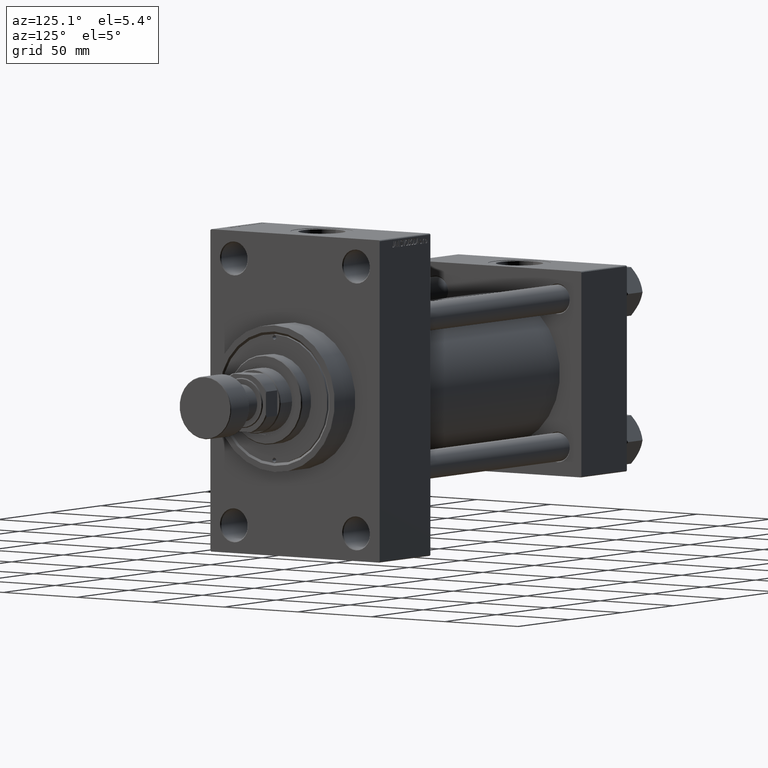
[diagram: clean part render]
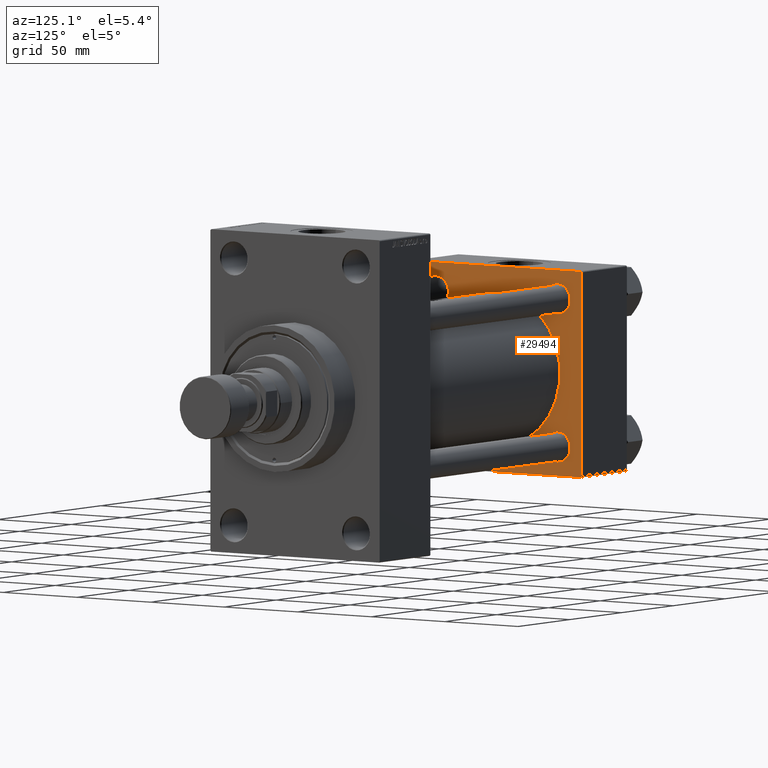
[diagram: same view with one face highlighted and labeled with its STEP entity id]
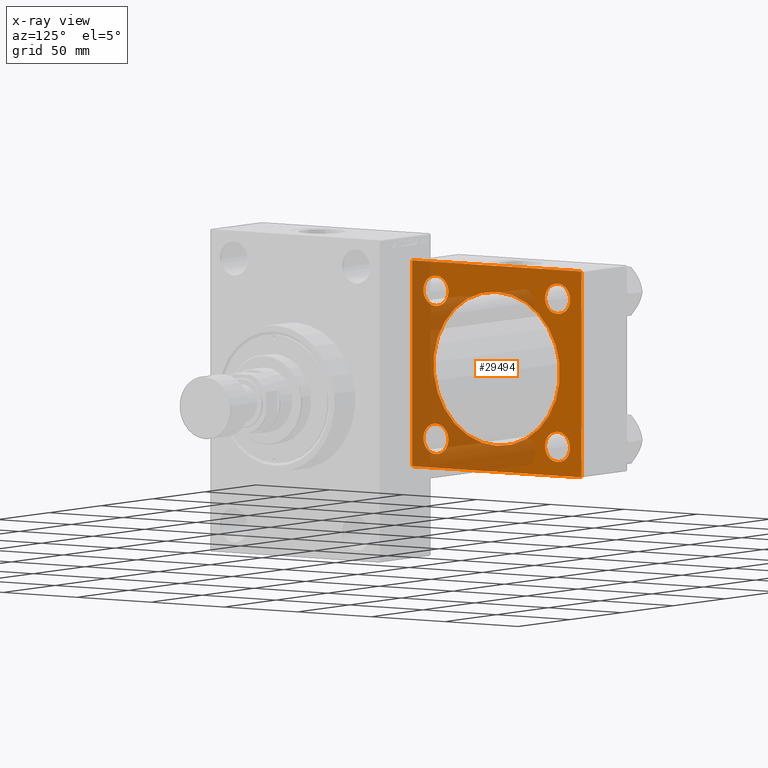
[diagram: x-ray of the same camera — body ghosted, the highlighted face saturated]
A machine part, auxiliary view. The second image highlights one B-rep face of the part: STEP entity #29494.
The next image is the same camera in x-ray: the body ghosted, the highlighted face saturated — about 46% of this face is hidden behind the body in this view.
In plain terms, the highlighted planar face has unit normal (-1, 0, 0).
Its self-contained STEP definition (entity closure, byte-faithful):
#167 = CARTESIAN_POINT ( 'NONE',  ( 44.00000000000000000, -41.34999999999998721, 41.35000000000000853 ) ) ;
#451 = ORIENTED_EDGE ( 'NONE', *, *, #45240, .F. ) ;
#1040 = CARTESIAN_POINT ( 'NONE',  ( 44.00000000000000000, 41.34999999999999432, 49.85000000000001563 ) ) ;
#1230 = EDGE_CURVE ( 'NONE', #16661, #9223, #42098, .T. ) ;
#1536 = CARTESIAN_POINT ( 'NONE',  ( 44.00000000000000000, 41.34999999999999432, -41.35000000000000142 ) ) ;
#1799 = CARTESIAN_POINT ( 'NONE',  ( 44.00000000000000000, -41.34999999999998721, -32.85000000000000142 ) ) ;
#1842 = AXIS2_PLACEMENT_3D ( 'NONE', #31743, #46619, #15879 ) ;
#1979 = DIRECTION ( 'NONE',  ( -1.000000000000000000, 0.000000000000000000, -0.000000000000000000 ) ) ;
#2081 = DIRECTION ( 'NONE',  ( -0.000000000000000000, 0.7071067811865376918, 0.7071067811865573427 ) ) ;
#2137 = CARTESIAN_POINT ( 'NONE',  ( 44.00000000000000000, 57.00000000000002132, -57.49999999999999289 ) ) ;
#2174 = DIRECTION ( 'NONE',  ( 0.000000000000000000, 0.000000000000000000, 1.000000000000000000 ) ) ;
#2661 = AXIS2_PLACEMENT_3D ( 'NONE', #28122, #24455, #16414 ) ;
#3060 = EDGE_CURVE ( 'NONE', #42774, #19624, #41374, .T. ) ;
#3071 = CARTESIAN_POINT ( 'NONE',  ( 44.00000000000000000, 41.34999999999999432, -32.84999999999999432 ) ) ;
#3076 = DIRECTION ( 'NONE',  ( 0.000000000000000000, 0.7071067811865474617, -0.7071067811865474617 ) ) ;
#3146 = PLANE ( 'NONE',  #37080 ) ;
#3874 = FACE_BOUND ( 'NONE', #24395, .T. ) ;
#4094 = VECTOR ( 'NONE', #24614, 1000.000000000000000 ) ;
#4162 = AXIS2_PLACEMENT_3D ( 'NONE', #6579, #43003, #46670 ) ;
#4253 = CARTESIAN_POINT ( 'NONE',  ( 43.99999999999998579, -2.602085213965210642E-15, 43.00000000000000000 ) ) ;
#4654 = CARTESIAN_POINT ( 'NONE',  ( 44.00000000000000000, -57.50000000000000711, 57.00000000000000711 ) ) ;
#4919 = CIRCLE ( 'NONE', #31501, 8.500000000000007105 ) ;
#4994 = CIRCLE ( 'NONE', #2661, 43.00000000000000000 ) ;
#6385 = EDGE_CURVE ( 'NONE', #17849, #46535, #18873, .T. ) ;
#6422 = CIRCLE ( 'NONE', #36108, 8.500000000000007105 ) ;
#6579 = CARTESIAN_POINT ( 'NONE',  ( 44.00000000000000000, -41.34999999999998721, -41.35000000000000853 ) ) ;
#7010 = AXIS2_PLACEMENT_3D ( 'NONE', #46441, #12972, #42766 ) ;
#7221 = LINE ( 'NONE', #36360, #32229 ) ;
#7801 = CARTESIAN_POINT ( 'NONE',  ( 44.00000000000000000, 57.00000000000000711, 57.50000000000000711 ) ) ;
#7850 = ORIENTED_EDGE ( 'NONE', *, *, #13488, .T. ) ;
#8288 = EDGE_LOOP ( 'NONE', ( #46690, #20162, #17393, #27352, #13007, #32854, #47978, #40878 ) ) ;
#8748 = EDGE_CURVE ( 'NONE', #9223, #16661, #6422, .T. ) ;
#9060 = EDGE_CURVE ( 'NONE', #17134, #26423, #42221, .T. ) ;
#9223 = VERTEX_POINT ( 'NONE', #3071 ) ;
#9466 = VERTEX_POINT ( 'NONE', #27746 ) ;
#10311 = EDGE_CURVE ( 'NONE', #29117, #42254, #42357, .T. ) ;
#10370 = VECTOR ( 'NONE', #20129, 1000.000000000000000 ) ;
#10828 = EDGE_CURVE ( 'NONE', #46535, #17849, #11989, .T. ) ;
#11565 = EDGE_CURVE ( 'NONE', #27484, #42254, #42662, .T. ) ;
#11644 = CARTESIAN_POINT ( 'NONE',  ( 44.00000000000000000, -41.34999999999998721, -49.85000000000002274 ) ) ;
#11823 = VERTEX_POINT ( 'NONE', #4253 ) ;
#11989 = CIRCLE ( 'NONE', #4162, 8.500000000000007105 ) ;
#12248 = CARTESIAN_POINT ( 'NONE',  ( 44.00000000000000000, -41.34999999999998721, 32.85000000000000142 ) ) ;
#12584 = CARTESIAN_POINT ( 'NONE',  ( 44.00000000000000000, 57.49999999999999289, -57.00000000000000711 ) ) ;
#12972 = DIRECTION ( 'NONE',  ( -1.000000000000000000, 0.000000000000000000, -0.000000000000000000 ) ) ;
#13007 = ORIENTED_EDGE ( 'NONE', *, *, #29221, .T. ) ;
#13375 = EDGE_CURVE ( 'NONE', #29117, #38491, #40053, .T. ) ;
#13488 = EDGE_CURVE ( 'NONE', #19624, #42774, #22197, .T. ) ;
#13864 = EDGE_CURVE ( 'NONE', #21424, #14814, #4919, .T. ) ;
#14239 = VERTEX_POINT ( 'NONE', #44420 ) ;
#14814 = VERTEX_POINT ( 'NONE', #25678 ) ;
#15112 = DIRECTION ( 'NONE',  ( 0.000000000000000000, 0.000000000000000000, 1.000000000000000000 ) ) ;
#15695 = ORIENTED_EDGE ( 'NONE', *, *, #3060, .T. ) ;
#15879 = DIRECTION ( 'NONE',  ( 0.000000000000000000, 0.000000000000000000, 1.000000000000000000 ) ) ;
#16370 = EDGE_LOOP ( 'NONE', ( #30360, #41125 ) ) ;
#16414 = DIRECTION ( 'NONE',  ( 0.000000000000000000, 0.000000000000000000, 1.000000000000000000 ) ) ;
#16438 = CARTESIAN_POINT ( 'NONE',  ( 44.00000000000000000, -41.34999999999998721, -41.35000000000000853 ) ) ;
#16470 = DIRECTION ( 'NONE',  ( -1.000000000000000000, 0.000000000000000000, -0.000000000000000000 ) ) ;
#16661 = VERTEX_POINT ( 'NONE', #29519 ) ;
#17134 = VERTEX_POINT ( 'NONE', #4654 ) ;
#17393 = ORIENTED_EDGE ( 'NONE', *, *, #10311, .F. ) ;
#17487 = VECTOR ( 'NONE', #2081, 1000.000000000000114 ) ;
#17849 = VERTEX_POINT ( 'NONE', #11644 ) ;
#18332 = CARTESIAN_POINT ( 'NONE',  ( 44.00000000000000000, 0.000000000000000000, 0.000000000000000000 ) ) ;
#18584 = ORIENTED_EDGE ( 'NONE', *, *, #8748, .T. ) ;
#18699 = AXIS2_PLACEMENT_3D ( 'NONE', #1536, #16470, #39189 ) ;
#18804 = FACE_BOUND ( 'NONE', #21066, .T. ) ;
#18873 = CIRCLE ( 'NONE', #41472, 8.500000000000007105 ) ;
#19391 = DIRECTION ( 'NONE',  ( 0.000000000000000000, 0.000000000000000000, 1.000000000000000000 ) ) ;
#19624 = VERTEX_POINT ( 'NONE', #45901 ) ;
#20129 = DIRECTION ( 'NONE',  ( 0.000000000000000000, 0.000000000000000000, -1.000000000000000000 ) ) ;
#20162 = ORIENTED_EDGE ( 'NONE', *, *, #11565, .T. ) ;
#20734 = CARTESIAN_POINT ( 'NONE',  ( 44.00000000000000000, -57.50000000000000711, -57.00000000000000711 ) ) ;
#21066 = EDGE_LOOP ( 'NONE', ( #36016, #18584 ) ) ;
#21424 = VERTEX_POINT ( 'NONE', #1040 ) ;
#22195 = CIRCLE ( 'NONE', #47920, 43.00000000000000000 ) ;
#22197 = CIRCLE ( 'NONE', #47072, 8.500000000000007105 ) ;
#22496 = DIRECTION ( 'NONE',  ( 0.000000000000000000, 0.000000000000000000, 1.000000000000000000 ) ) ;
#22591 = DIRECTION ( 'NONE',  ( 0.000000000000000000, -1.000000000000000000, -1.206764157201257045E-16 ) ) ;
#23305 = LINE ( 'NONE', #33598, #43301 ) ;
#23756 = EDGE_CURVE ( 'NONE', #42383, #17134, #25225, .T. ) ;
#24214 = DIRECTION ( 'NONE',  ( 0.000000000000000000, 0.000000000000000000, 1.000000000000000000 ) ) ;
#24395 = EDGE_LOOP ( 'NONE', ( #451, #44011 ) ) ;
#24455 = DIRECTION ( 'NONE',  ( 1.000000000000000000, -0.000000000000000000, 0.000000000000000000 ) ) ;
#24614 = DIRECTION ( 'NONE',  ( 0.000000000000000000, 0.000000000000000000, -1.000000000000000000 ) ) ;
#25122 = DIRECTION ( 'NONE',  ( 0.000000000000000000, -0.7071067811865573427, 0.7071067811865376918 ) ) ;
#25133 = EDGE_LOOP ( 'NONE', ( #41014, #26827 ) ) ;
#25225 = LINE ( 'NONE', #33064, #30660 ) ;
#25647 = DIRECTION ( 'NONE',  ( -0.000000000000000000, 0.000000000000000000, 1.000000000000000000 ) ) ;
#25678 = CARTESIAN_POINT ( 'NONE',  ( 44.00000000000000000, 41.34999999999999432, 32.84999999999999432 ) ) ;
#25702 = DIRECTION ( 'NONE',  ( -0.000000000000000000, -0.7071067811865376918, -0.7071067811865573427 ) ) ;
#26144 = FACE_BOUND ( 'NONE', #27677, .T. ) ;
#26384 = CARTESIAN_POINT ( 'NONE',  ( 44.00000000000000000, 57.49999999999999289, -57.49999999999999289 ) ) ;
#26423 = VERTEX_POINT ( 'NONE', #20734 ) ;
#26617 = DIRECTION ( 'NONE',  ( 0.000000000000000000, -1.000000000000000000, -1.206764157201257045E-16 ) ) ;
#26827 = ORIENTED_EDGE ( 'NONE', *, *, #10828, .T. ) ;
#26852 = CIRCLE ( 'NONE', #1842, 8.500000000000007105 ) ;
#27242 = EDGE_CURVE ( 'NONE', #27484, #14239, #41782, .T. ) ;
#27321 = EDGE_CURVE ( 'NONE', #14814, #21424, #26852, .T. ) ;
#27352 = ORIENTED_EDGE ( 'NONE', *, *, #13375, .T. ) ;
#27484 = VERTEX_POINT ( 'NONE', #2137 ) ;
#27677 = EDGE_LOOP ( 'NONE', ( #15695, #7850 ) ) ;
#27699 = CARTESIAN_POINT ( 'NONE',  ( 44.00000000000000000, 57.49999999999999289, 57.50000000000000711 ) ) ;
#27746 = CARTESIAN_POINT ( 'NONE',  ( 43.99999999999998579, 2.663896022368408223E-15, -43.00000000000000000 ) ) ;
#28122 = CARTESIAN_POINT ( 'NONE',  ( 43.99999999999998579, -2.602085213965210642E-15, 0.000000000000000000 ) ) ;
#29117 = VERTEX_POINT ( 'NONE', #36305 ) ;
#29221 = EDGE_CURVE ( 'NONE', #38491, #42383, #23305, .T. ) ;
#29241 = VECTOR ( 'NONE', #25122, 1000.000000000000114 ) ;
#29494 = ADVANCED_FACE ( 'NONE', ( #44698, #18804, #26144, #36658, #3874, #47890 ), #3146, .F. ) ;
#29519 = CARTESIAN_POINT ( 'NONE',  ( 44.00000000000000000, 41.34999999999999432, -49.85000000000001563 ) ) ;
#29584 = DIRECTION ( 'NONE',  ( 1.000000000000000000, -0.000000000000000000, 0.000000000000000000 ) ) ;
#30360 = ORIENTED_EDGE ( 'NONE', *, *, #27321, .T. ) ;
#30548 = CARTESIAN_POINT ( 'NONE',  ( 43.99999999999998579, -2.602085213965210642E-15, 0.000000000000000000 ) ) ;
#30660 = VECTOR ( 'NONE', #25702, 1000.000000000000114 ) ;
#30765 = VECTOR ( 'NONE', #26617, 1000.000000000000000 ) ;
#31501 = AXIS2_PLACEMENT_3D ( 'NONE', #39138, #1979, #24214 ) ;
#31743 = CARTESIAN_POINT ( 'NONE',  ( 44.00000000000000000, 41.34999999999999432, 41.35000000000000142 ) ) ;
#32229 = VECTOR ( 'NONE', #3076, 1000.000000000000114 ) ;
#32854 = ORIENTED_EDGE ( 'NONE', *, *, #23756, .T. ) ;
#33064 = CARTESIAN_POINT ( 'NONE',  ( 44.00000000000000000, -57.50000000000000711, 57.00000000000000711 ) ) ;
#33598 = CARTESIAN_POINT ( 'NONE',  ( 44.00000000000000000, 57.49999999999999289, 57.50000000000000711 ) ) ;
#33724 = DIRECTION ( 'NONE',  ( -1.000000000000000000, 0.000000000000000000, -0.000000000000000000 ) ) ;
#34404 = DIRECTION ( 'NONE',  ( -1.000000000000000000, 0.000000000000000000, -0.000000000000000000 ) ) ;
#34796 = DIRECTION ( 'NONE',  ( -1.000000000000000000, 0.000000000000000000, -0.000000000000000000 ) ) ;
#35137 = CARTESIAN_POINT ( 'NONE',  ( 44.00000000000000000, -57.50000000000000711, 57.49999999999999289 ) ) ;
#35806 = CARTESIAN_POINT ( 'NONE',  ( 44.00000000000000000, -57.00000000000003553, 57.49999999999999289 ) ) ;
#36016 = ORIENTED_EDGE ( 'NONE', *, *, #1230, .T. ) ;
#36108 = AXIS2_PLACEMENT_3D ( 'NONE', #39599, #42988, #2174 ) ;
#36305 = CARTESIAN_POINT ( 'NONE',  ( 44.00000000000000000, 57.49999999999999289, 57.00000000000003553 ) ) ;
#36360 = CARTESIAN_POINT ( 'NONE',  ( 44.00000000000000000, -57.00000000000000711, -57.50000000000000711 ) ) ;
#36658 = FACE_BOUND ( 'NONE', #16370, .T. ) ;
#37080 = AXIS2_PLACEMENT_3D ( 'NONE', #18332, #33724, #25647 ) ;
#38491 = VERTEX_POINT ( 'NONE', #7801 ) ;
#39138 = CARTESIAN_POINT ( 'NONE',  ( 44.00000000000000000, 41.34999999999999432, 41.35000000000000142 ) ) ;
#39189 = DIRECTION ( 'NONE',  ( 0.000000000000000000, 0.000000000000000000, 1.000000000000000000 ) ) ;
#39599 = CARTESIAN_POINT ( 'NONE',  ( 44.00000000000000000, 41.34999999999999432, -41.35000000000000142 ) ) ;
#40053 = LINE ( 'NONE', #40304, #29241 ) ;
#40304 = CARTESIAN_POINT ( 'NONE',  ( 44.00000000000000000, 57.00000000000000711, 57.50000000000000711 ) ) ;
#40878 = ORIENTED_EDGE ( 'NONE', *, *, #41918, .T. ) ;
#41014 = ORIENTED_EDGE ( 'NONE', *, *, #6385, .T. ) ;
#41125 = ORIENTED_EDGE ( 'NONE', *, *, #13864, .T. ) ;
#41374 = CIRCLE ( 'NONE', #7010, 8.500000000000007105 ) ;
#41472 = AXIS2_PLACEMENT_3D ( 'NONE', #16438, #34796, #19391 ) ;
#41782 = LINE ( 'NONE', #26384, #30765 ) ;
#41918 = EDGE_CURVE ( 'NONE', #26423, #14239, #7221, .T. ) ;
#42098 = CIRCLE ( 'NONE', #18699, 8.500000000000007105 ) ;
#42221 = LINE ( 'NONE', #35137, #4094 ) ;
#42254 = VERTEX_POINT ( 'NONE', #12584 ) ;
#42357 = LINE ( 'NONE', #27699, #10370 ) ;
#42383 = VERTEX_POINT ( 'NONE', #35806 ) ;
#42662 = LINE ( 'NONE', #47295, #17487 ) ;
#42766 = DIRECTION ( 'NONE',  ( 0.000000000000000000, 0.000000000000000000, 1.000000000000000000 ) ) ;
#42774 = VERTEX_POINT ( 'NONE', #12248 ) ;
#42988 = DIRECTION ( 'NONE',  ( -1.000000000000000000, 0.000000000000000000, -0.000000000000000000 ) ) ;
#43003 = DIRECTION ( 'NONE',  ( -1.000000000000000000, 0.000000000000000000, -0.000000000000000000 ) ) ;
#43301 = VECTOR ( 'NONE', #22591, 1000.000000000000000 ) ;
#44011 = ORIENTED_EDGE ( 'NONE', *, *, #45407, .F. ) ;
#44420 = CARTESIAN_POINT ( 'NONE',  ( 44.00000000000000000, -57.00000000000000711, -57.50000000000000711 ) ) ;
#44698 = FACE_BOUND ( 'NONE', #25133, .T. ) ;
#45240 = EDGE_CURVE ( 'NONE', #11823, #9466, #4994, .T. ) ;
#45407 = EDGE_CURVE ( 'NONE', #9466, #11823, #22195, .T. ) ;
#45901 = CARTESIAN_POINT ( 'NONE',  ( 44.00000000000000000, -41.34999999999998721, 49.85000000000002274 ) ) ;
#46441 = CARTESIAN_POINT ( 'NONE',  ( 44.00000000000000000, -41.34999999999998721, 41.35000000000000853 ) ) ;
#46535 = VERTEX_POINT ( 'NONE', #1799 ) ;
#46619 = DIRECTION ( 'NONE',  ( -1.000000000000000000, 0.000000000000000000, -0.000000000000000000 ) ) ;
#46670 = DIRECTION ( 'NONE',  ( 0.000000000000000000, 0.000000000000000000, 1.000000000000000000 ) ) ;
#46690 = ORIENTED_EDGE ( 'NONE', *, *, #27242, .F. ) ;
#47072 = AXIS2_PLACEMENT_3D ( 'NONE', #167, #34404, #15112 ) ;
#47295 = CARTESIAN_POINT ( 'NONE',  ( 44.00000000000000000, 57.49999999999999289, -57.00000000000000711 ) ) ;
#47890 = FACE_OUTER_BOUND ( 'NONE', #8288, .T. ) ;
#47920 = AXIS2_PLACEMENT_3D ( 'NONE', #30548, #29584, #22496 ) ;
#47978 = ORIENTED_EDGE ( 'NONE', *, *, #9060, .T. ) ;